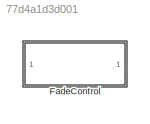
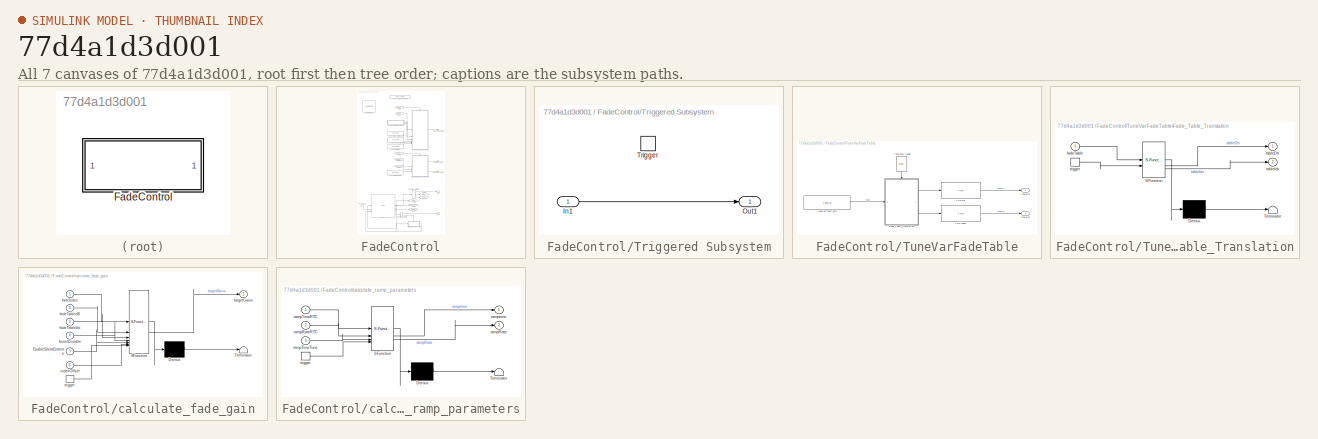
[diagram: thumbnail index - all 7 canvases of the model, root first then tree order]
MODEL slx_77d4a1d3d001
KIND library
CONFIG AbsTol = auto
CONFIG EnableMultiTasking = off
CONFIG FixedStep = auto
CONFIG MaxStep = auto
CONFIG MinStep = auto
CONFIG RelTol = 1e-3
CONFIG SampleTimeConstraint = Unconstrained
CONFIG SolverName = VariableStepAuto
CONFIG StartTime = 0.0
CONFIG StopTime = 10.0
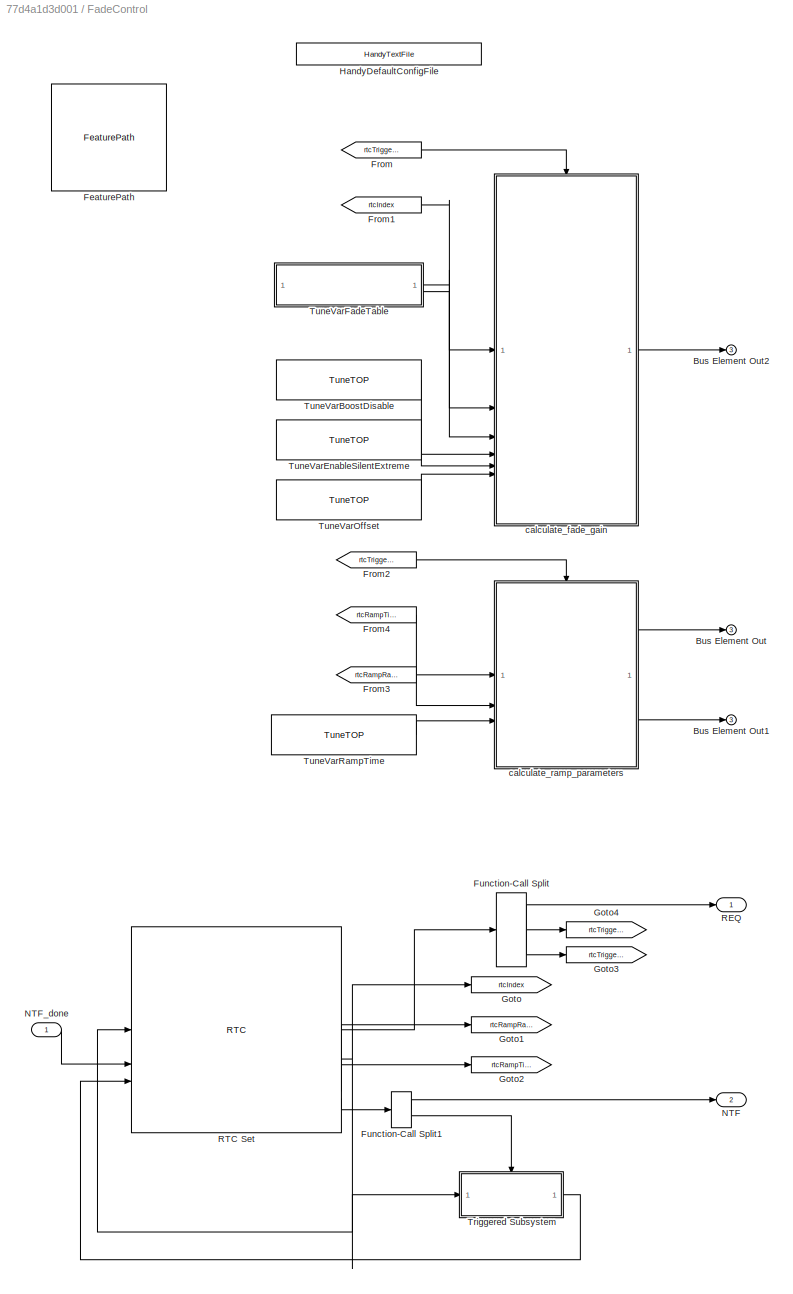
BLOCK [SubSystem] FadeControl
BLOCK [Outport] FadeControl/Bus Element Out
  Port = 3
BLOCK [Outport] FadeControl/Bus Element Out1
  Port = 3
BLOCK [Outport] FadeControl/Bus Element Out2
  Port = 3
BLOCK [Reference] FadeControl/FeaturePath  REF=FeaturePath/FeaturePath
  SourceBlock = FeaturePath/FeaturePath
  SourceProductName = Bose Talaria
  SourceType = Talaria Feature Path
BLOCK [From] FadeControl/From
  GotoTag = rtcTriggerGain
BLOCK [From] FadeControl/From1
  GotoTag = rtcIndex
BLOCK [From] FadeControl/From2
  GotoTag = rtcTriggerRamp
BLOCK [From] FadeControl/From3
  GotoTag = rtcRampRate
BLOCK [From] FadeControl/From4
  GotoTag = rtcRampTime
BLOCK [FunctionCallSplit] FadeControl/Function-Call Split
  IconShape = distinctive
  NumOutputPorts = 3
BLOCK [FunctionCallSplit] FadeControl/Function-Call Split1
  IconShape = distinctive
  NumOutputPorts = 2
  OutputPortLayout = default
BLOCK [Goto] FadeControl/Goto
  GotoTag = rtcIndex
BLOCK [Goto] FadeControl/Goto1
  GotoTag = rtcRampRate
BLOCK [Goto] FadeControl/Goto2
  GotoTag = rtcRampTime
BLOCK [Goto] FadeControl/Goto3
  GotoTag = rtcTriggerGain
BLOCK [Goto] FadeControl/Goto4
  GotoTag = rtcTriggerRamp
BLOCK [Reference] FadeControl/HandyDefaultConfigFile  REF=HandyTextFile/HandyTextFile
  SourceBlock = HandyTextFile/HandyTextFile
  SourceProductName = Bose Talaria
  SourceType = Talaria Handy Text File
BLOCK [Outport] FadeControl/NTF
  Port = 2
BLOCK [Inport] FadeControl/NTF_done
BLOCK [Outport] FadeControl/REQ
BLOCK [Reference] FadeControl/RTC Set  REF=RTC/RTC
  Description = Provide the target value as a 32-bit signed integer index value (to be mapped through a tunable calibration into a normalized float between -1 and 1).\n \nTo use slope-based ramping:\n----------------------------------\nWhen db_per_second has a non-zero value,ramp_milliseconds is ignored and db_per_second controls the ramp.\n \nTo use time-based ramping:\n----------------------------------\nThe value of d...<+76ch>
  SourceBlock = RTC/RTC
  SourceProductName = Bose Talaria
  SourceType = Talaria RTC Receive
BLOCK [SubSystem] FadeControl/Triggered Subsystem
  TreatAsAtomicUnit = on
BLOCK [Inport] FadeControl/Triggered Subsystem/In1
BLOCK [Outport] FadeControl/Triggered Subsystem/Out1
BLOCK [TriggerPort] FadeControl/Triggered Subsystem/Trigger
  StatesWhenEnabling = held
  TriggerType = function-call
  VariantControl = Variant
BLOCK [Reference] FadeControl/TuneVarBoostDisable  REF=TuneVar/TuneTOP
  Description = Specifies the the 'boost' value to be applied to the channels towards which the fade is shifted. A value of '1' indicates that there is no boost (i.e. 0 dB), whereas '0' indicates that the 'boost' must be computed from the 'cut' value (which gets computed from the Table). In order to preserve the overall energy, the following formula is used: Boost^2 + Cut^2 = 2.
  SourceBlock = TuneVar/TuneTOP
  SourceProductName = Bose Talaria
  SourceType = Talaria Trivial Tune TOP
BLOCK [Reference] FadeControl/TuneVarEnableSilentExtreme  REF=TuneVar/TuneTOP
  Description = When set to '0', the fade process occurs as follows- Only the non-bass content of the audio is faded and the bass content of the corresponding group remains as it is. This means that at extreme indices, the bass content of the group whose audio received a gain 'cut' is still intact.\n\nWhen set to '1', if the audio is faded *completely* forward or backward (extreme indices), the group which is faded...<+47ch>
  SourceBlock = TuneVar/TuneTOP
  SourceProductName = Bose Talaria
  SourceType = Talaria Trivial Tune TOP
BLOCK [SubSystem] FadeControl/TuneVarFadeTable
  Description = Map indices to corresponding gains in dB. Gains for indices located between consecutive index entries in the table are computed linearly.
BLOCK [SubSystem] FadeControl/TuneVarFadeTable/Fade_Table_Translation
  ErrorFcn = Stateflow.Translate.translate
  PermitHierarchicalResolution = ExplicitOnly
  SFBlockType = MATLAB Function
  TreatAsAtomicUnit = on
BLOCK [Demux] FadeControl/TuneVarFadeTable/Fade_Table_Translation/ Demux 
  Outputs = 1
BLOCK [S-Function] FadeControl/TuneVarFadeTable/Fade_Table_Translation/ SFunction 
  EnableBusSupport = off
  FunctionName = sf_sfun
  PortCounts = [2 3]
  SFcnIsStateOwnerBlock = off
  SFunctionDeploymentMode = off
  Tag = Stateflow S-Function 8
BLOCK [Terminator] FadeControl/TuneVarFadeTable/Fade_Table_Translation/ Terminator 
BLOCK [Inport] FadeControl/TuneVarFadeTable/Fade_Table_Translation/fadeTable
BLOCK [Outport] FadeControl/TuneVarFadeTable/Fade_Table_Translation/tableDb
  VectorParamsAs1DForOutWhenUnconnected = off
BLOCK [Outport] FadeControl/TuneVarFadeTable/Fade_Table_Translation/tableIdx
  Port = 2
  VectorParamsAs1DForOutWhenUnconnected = off
BLOCK [TriggerPort] FadeControl/TuneVarFadeTable/Fade_Table_Translation/trigger
  ShowOutputPort = on
  StatesWhenEnabling = held
  TriggerType = function-call
  VariantControl = Variant
BLOCK [Reference] FadeControl/TuneVarFadeTable/TOPDb  REF=TOP/TOP
  SourceBlock = TOP/TOP
  SourceProductName = Bose Talaria
  SourceType = Talaria Target Overlay Parameter
BLOCK [Reference] FadeControl/TuneVarFadeTable/TOPIndex  REF=TOP/TOP
  SourceBlock = TOP/TOP
  SourceProductName = Bose Talaria
  SourceType = Talaria Target Overlay Parameter
BLOCK [Outport] FadeControl/TuneVarFadeTable/TableDb
  VectorParamsAs1DForOutWhenUnconnected = off
BLOCK [Outport] FadeControl/TuneVarFadeTable/TableIdx
  Port = 2
  VectorParamsAs1DForOutWhenUnconnected = off
BLOCK [Reference] FadeControl/TuneVarFadeTable/TranslateTrigger  REF=TuneVar/TranslateTrigger
  NameLocation = left
  SourceBlock = TuneVar/TranslateTrigger
  SourceProductName = Bose Talaria
  SourceType = Talaria Translate Trigger
BLOCK [Reference] FadeControl/TuneVarFadeTable/TuneVarFadeTable  REF=TuneVar/TuneVar
  Description = Define the fade curve using a table, with the first column being the list of indices and the second column being the corresponding fade gains in dB. Gain values for indices in between the elements in the table are linearly interpolated.
  SourceBlock = TuneVar/TuneVar
  SourceProductName = Bose Talaria
  SourceType = Talaria Tune Variable
BLOCK [Reference] FadeControl/TuneVarOffset  REF=TuneVar/TuneTOP
  Description = Defines the index at which the Fade is at the center.
  SourceBlock = TuneVar/TuneTOP
  SourceProductName = Bose Talaria
  SourceType = Talaria Trivial Tune TOP
BLOCK [Reference] FadeControl/TuneVarRampTime  REF=TuneVar/TuneTOP
  Description = Specifies the default ramp time for the rampers.
  SourceBlock = TuneVar/TuneTOP
  SourceProductName = Bose Talaria
  SourceType = Talaria Trivial Tune TOP
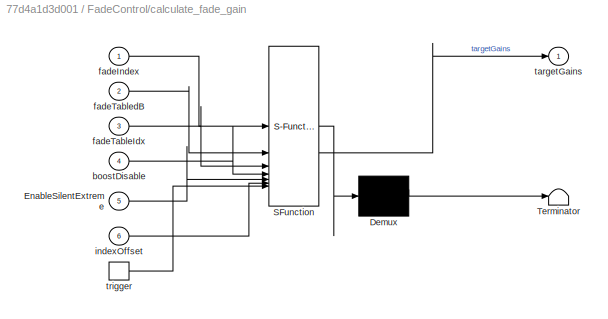
BLOCK [SubSystem] FadeControl/calculate_fade_gain
  ErrorFcn = Stateflow.Translate.translate
  PermitHierarchicalResolution = ExplicitOnly
  SFBlockType = MATLAB Function
  TreatAsAtomicUnit = on
BLOCK [Demux] FadeControl/calculate_fade_gain/ Demux 
  Outputs = 1
BLOCK [S-Function] FadeControl/calculate_fade_gain/ SFunction 
  EnableBusSupport = off
  FunctionName = sf_sfun
  Parameters = MaskNumRampers
  PortCounts = [7 2]
  SFcnIsStateOwnerBlock = off
  SFunctionDeploymentMode = off
  Tag = Stateflow S-Function 12
BLOCK [Terminator] FadeControl/calculate_fade_gain/ Terminator 
BLOCK [Inport] FadeControl/calculate_fade_gain/EnableSilentExtreme
  Port = 5
BLOCK [Inport] FadeControl/calculate_fade_gain/boostDisable
  Port = 4
BLOCK [Inport] FadeControl/calculate_fade_gain/fadeIndex
BLOCK [Inport] FadeControl/calculate_fade_gain/fadeTableIdx
  Port = 3
BLOCK [Inport] FadeControl/calculate_fade_gain/fadeTabledB
  Port = 2
BLOCK [Inport] FadeControl/calculate_fade_gain/indexOffset
  Port = 6
BLOCK [Outport] FadeControl/calculate_fade_gain/targetGains
  VectorParamsAs1DForOutWhenUnconnected = off
BLOCK [TriggerPort] FadeControl/calculate_fade_gain/trigger
  ShowOutputPort = on
  StatesWhenEnabling = held
  TriggerType = function-call
  VariantControl = Variant
BLOCK [SubSystem] FadeControl/calculate_ramp_parameters
  ErrorFcn = Stateflow.Translate.translate
  PermitHierarchicalResolution = ExplicitOnly
  SFBlockType = MATLAB Function
  TreatAsAtomicUnit = on
BLOCK [Demux] FadeControl/calculate_ramp_parameters/ Demux 
  Outputs = 1
BLOCK [S-Function] FadeControl/calculate_ramp_parameters/ SFunction 
  EnableBusSupport = off
  FunctionName = sf_sfun
  Parameters = rampRateBounds,rampTimeBounds
  PortCounts = [4 3]
  SFcnIsStateOwnerBlock = off
  SFunctionDeploymentMode = off
  Tag = Stateflow S-Function 1
BLOCK [Terminator] FadeControl/calculate_ramp_parameters/ Terminator 
BLOCK [Outport] FadeControl/calculate_ramp_parameters/rampRate
  Port = 2
  VectorParamsAs1DForOutWhenUnconnected = off
BLOCK [Inport] FadeControl/calculate_ramp_parameters/rampRateRTC
  Port = 2
BLOCK [Inport] FadeControl/calculate_ramp_parameters/rampTimeRTC
BLOCK [Inport] FadeControl/calculate_ramp_parameters/rampTimeTune
  Port = 3
BLOCK [Outport] FadeControl/calculate_ramp_parameters/ramptime
  VectorParamsAs1DForOutWhenUnconnected = off
BLOCK [TriggerPort] FadeControl/calculate_ramp_parameters/trigger
  ShowOutputPort = on
  StatesWhenEnabling = held
  TriggerType = function-call
  VariantControl = Variant
LINE FadeControl/From1:1 -> FadeControl/calculate_fade_gain:1
LINE FadeControl/From2:1 -> FadeControl/calculate_ramp_parameters:trigger
LINE FadeControl/From3:1 -> FadeControl/calculate_ramp_parameters:2
LINE FadeControl/From4:1 -> FadeControl/calculate_ramp_parameters:1
LINE FadeControl/From:1 -> FadeControl/calculate_fade_gain:trigger
LINE FadeControl/Function-Call Split1:1 -> FadeControl/NTF:1
LINE FadeControl/Function-Call Split1:2 -> FadeControl/Triggered Subsystem:trigger
LINE FadeControl/Function-Call Split:1 -> FadeControl/Goto3:1
LINE FadeControl/Function-Call Split:2 -> FadeControl/Goto4:1
LINE FadeControl/Function-Call Split:3 -> FadeControl/REQ:1
LINE FadeControl/NTF_done:1 -> FadeControl/RTC Set:2
LINE FadeControl/RTC Set:1 -> FadeControl/Function-Call Split:1
NET FadeControl/RTC Set:2 -> FadeControl/Goto:1, FadeControl/RTC Set:1, FadeControl/Triggered Subsystem:1
LINE FadeControl/RTC Set:3 -> FadeControl/Goto1:1
LINE FadeControl/RTC Set:4 -> FadeControl/Goto2:1
LINE FadeControl/RTC Set:5 -> FadeControl/Function-Call Split1:1
LINE FadeControl/Triggered Subsystem/In1:1 -> FadeControl/Triggered Subsystem/Out1:1
LINE FadeControl/Triggered Subsystem:1 -> FadeControl/RTC Set:3
LINE FadeControl/TuneVarBoostDisable:1 -> FadeControl/calculate_fade_gain:4
LINE FadeControl/TuneVarEnableSilentExtreme:1 -> FadeControl/calculate_fade_gain:5
LINE FadeControl/TuneVarFadeTable/Fade_Table_Translation:1 -> FadeControl/TuneVarFadeTable/TOPDb:1
LINE FadeControl/TuneVarFadeTable/Fade_Table_Translation:2 -> FadeControl/TuneVarFadeTable/TOPIndex:1
LINE FadeControl/TuneVarFadeTable/TOPDb:1 -> FadeControl/TuneVarFadeTable/TableDb:1
LINE FadeControl/TuneVarFadeTable/TOPIndex:1 -> FadeControl/TuneVarFadeTable/TableIdx:1
LINE FadeControl/TuneVarFadeTable/TranslateTrigger:1 -> FadeControl/TuneVarFadeTable/Fade_Table_Translation:trigger
LINE FadeControl/TuneVarFadeTable/TuneVarFadeTable:1 -> FadeControl/TuneVarFadeTable/Fade_Table_Translation:1
LINE FadeControl/TuneVarFadeTable:1 -> FadeControl/calculate_fade_gain:2
LINE FadeControl/TuneVarFadeTable:2 -> FadeControl/calculate_fade_gain:3
LINE FadeControl/TuneVarOffset:1 -> FadeControl/calculate_fade_gain:6
LINE FadeControl/TuneVarRampTime:1 -> FadeControl/calculate_ramp_parameters:3
LINE FadeControl/calculate_fade_gain:1 -> FadeControl/Bus Element Out2:1
LINE FadeControl/calculate_ramp_parameters:1 -> FadeControl/Bus Element Out:1
LINE FadeControl/calculate_ramp_parameters:2 -> FadeControl/Bus Element Out1:1
note: NET lines group one-source signal fan-out (src -> all destinations, sorted); 1:1 wires keep LINE
CHART FadeControl/calculate_ramp_parameters states=1 transitions=1
  STATE_LABEL 'eML_blk_kernel()'
  STATE_LABEL 'SCRIPT:\nfunction [ramptime, rampRate]  = calculate_ramp_parameters(rampTimeRTC, rampRateRTC,...\n    rampTimeTune,...\n    rampRateBounds, rampTimeBounds)  % parameters\n% Function to calculate ramp parameters\n% \n\n% Ramp time and rate are provided to the block through RTC messages. However \n% in case neither of them are provided, the block will use the default ramp \n% time given in the tune variables...<+414ch>'
CHART FadeControl/TuneVarFadeTable/Fade_Table_Translation states=1 transitions=1
  STATE_LABEL 'eML_blk_kernel()'
  STATE_LABEL "SCRIPT:\nfunction [tableDb, tableIdx] = fcn(fadeTable)\n%#codegen\n\n% Set up the size and datatype of our TOP outputs:\nmaxTableSize = numel(fadeTable.Value) / 2;\nidxType = 'uint8';\nidxStorageType = 'uint32';\ndbType = 'single';\ntableIdx = zeros(1,maxTableSize,idxStorageType);\ntableDb = zeros(1,maxTableSize,dbType);\n\n% separate the pairs into their index and value components\ngivenPairs = fadeTable.Size...<+957ch>"
CHART FadeControl/calculate_fade_gain states=1 transitions=1
  STATE_LABEL 'eML_blk_kernel()'
  STATE_LABEL "SCRIPT:\nfunction targetGains  = Calculate_Fade_Gain(fadeIndex, fadeTabledB,...\n    fadeTableIdx, boostDisable, EnableSilentExtreme, indexOffset, ... % inputs\n    MaskNumRampers) % parameters\n\n% Computes the fade gains for the 'Front' and 'Rear' groups based on the\n% index. Based on the position of the index in the table, either group \n% receives a gain 'cut' or 'boost' in order to achieve the fade...<+2389ch>"
CHART  states=0 transitions=0
CHART  states=0 transitions=0
CHART  states=0 transitions=0
